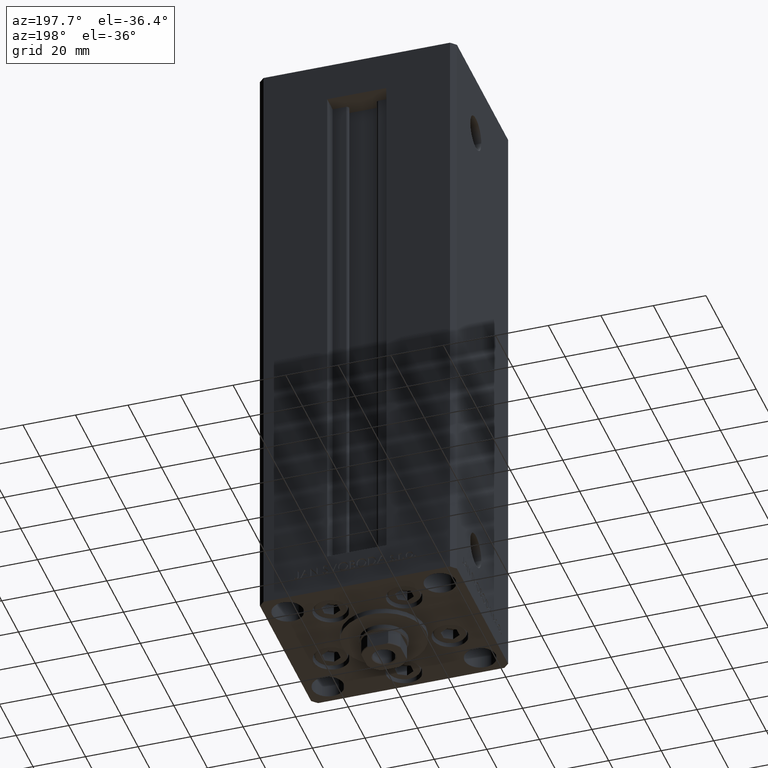
[diagram: clean part render]
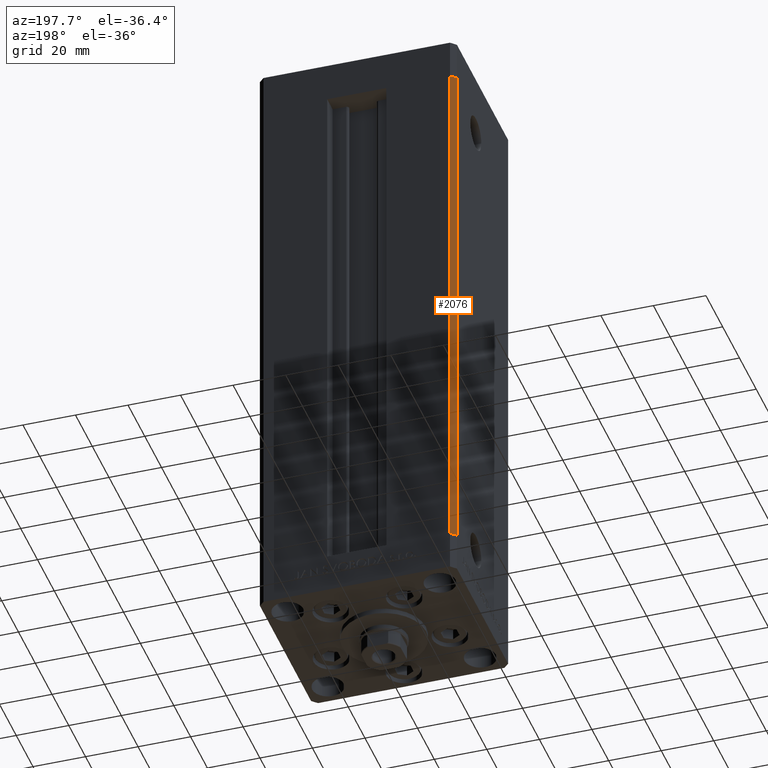
[diagram: same view with one face highlighted and labeled with its STEP entity id]
A machine part, auxiliary view. The second image highlights one B-rep face of the part: STEP entity #2076.
In plain terms, the highlighted planar face has unit normal (0.7071, -0.7071, 0).
Its self-contained STEP definition (entity closure, byte-faithful):
#375 = ORIENTED_EDGE ( 'NONE', *, *, #48442, .T. ) ;
#531 = VERTEX_POINT ( 'NONE', #15522 ) ;
#598 = DIRECTION ( 'NONE',  ( 0.7071067811865451302, -0.7071067811865499042, 0.000000000000000000 ) ) ;
#2076 = ADVANCED_FACE ( 'NONE', ( #42072 ), #49604, .F. ) ;
#2254 = VECTOR ( 'NONE', #40464, 1000.000000000000000 ) ;
#11589 = CARTESIAN_POINT ( 'NONE',  ( -35.50000000000000000, 32.49999999999999289, 0.000000000000000000 ) ) ;
#14246 = EDGE_CURVE ( 'NONE', #531, #21778, #25228, .T. ) ;
#14864 = ORIENTED_EDGE ( 'NONE', *, *, #36412, .F. ) ;
#15522 = CARTESIAN_POINT ( 'NONE',  ( -35.50000000000000000, 32.49999999999999289, 206.0000000000000000 ) ) ;
#15662 = CARTESIAN_POINT ( 'NONE',  ( -35.50000000000000000, 32.49999999999999289, 206.0000000000000000 ) ) ;
#16574 = CARTESIAN_POINT ( 'NONE',  ( -37.50000000000000711, 30.50000000000000000, 206.0000000000000000 ) ) ;
#18810 = EDGE_LOOP ( 'NONE', ( #30315, #14864, #43662, #375 ) ) ;
#19113 = LINE ( 'NONE', #11589, #22863 ) ;
#19748 = VECTOR ( 'NONE', #37205, 1000.000000000000000 ) ;
#21778 = VERTEX_POINT ( 'NONE', #46412 ) ;
#22358 = CARTESIAN_POINT ( 'NONE',  ( -35.50000000000000000, 32.49999999999999289, 206.0000000000000000 ) ) ;
#22711 = DIRECTION ( 'NONE',  ( 0.7071067811865499042, 0.7071067811865451302, 0.000000000000000000 ) ) ;
#22863 = VECTOR ( 'NONE', #34485, 1000.000000000000114 ) ;
#24241 = CARTESIAN_POINT ( 'NONE',  ( -35.50000000000000000, 32.49999999999999289, 206.0000000000000000 ) ) ;
#25228 = LINE ( 'NONE', #24241, #43341 ) ;
#25678 = EDGE_CURVE ( 'NONE', #30893, #35841, #19113, .T. ) ;
#27822 = AXIS2_PLACEMENT_3D ( 'NONE', #15662, #598, #22711 ) ;
#30315 = ORIENTED_EDGE ( 'NONE', *, *, #25678, .T. ) ;
#30893 = VERTEX_POINT ( 'NONE', #45880 ) ;
#31784 = DIRECTION ( 'NONE',  ( -0.7071067811865500152, -0.7071067811865451302, 0.000000000000000000 ) ) ;
#34485 = DIRECTION ( 'NONE',  ( -0.7071067811865500152, -0.7071067811865451302, 0.000000000000000000 ) ) ;
#35708 = LINE ( 'NONE', #16574, #2254 ) ;
#35841 = VERTEX_POINT ( 'NONE', #45843 ) ;
#36412 = EDGE_CURVE ( 'NONE', #21778, #35841, #35708, .T. ) ;
#37205 = DIRECTION ( 'NONE',  ( -0.000000000000000000, -0.000000000000000000, -1.000000000000000000 ) ) ;
#40464 = DIRECTION ( 'NONE',  ( -0.000000000000000000, -0.000000000000000000, -1.000000000000000000 ) ) ;
#42072 = FACE_OUTER_BOUND ( 'NONE', #18810, .T. ) ;
#43341 = VECTOR ( 'NONE', #31784, 1000.000000000000114 ) ;
#43662 = ORIENTED_EDGE ( 'NONE', *, *, #14246, .F. ) ;
#45843 = CARTESIAN_POINT ( 'NONE',  ( -37.50000000000000711, 30.50000000000000000, 0.000000000000000000 ) ) ;
#45880 = CARTESIAN_POINT ( 'NONE',  ( -35.50000000000000000, 32.49999999999999289, 0.000000000000000000 ) ) ;
#45976 = LINE ( 'NONE', #22358, #19748 ) ;
#46412 = CARTESIAN_POINT ( 'NONE',  ( -37.50000000000000711, 30.50000000000000000, 206.0000000000000000 ) ) ;
#48442 = EDGE_CURVE ( 'NONE', #531, #30893, #45976, .T. ) ;
#49604 = PLANE ( 'NONE',  #27822 ) ;